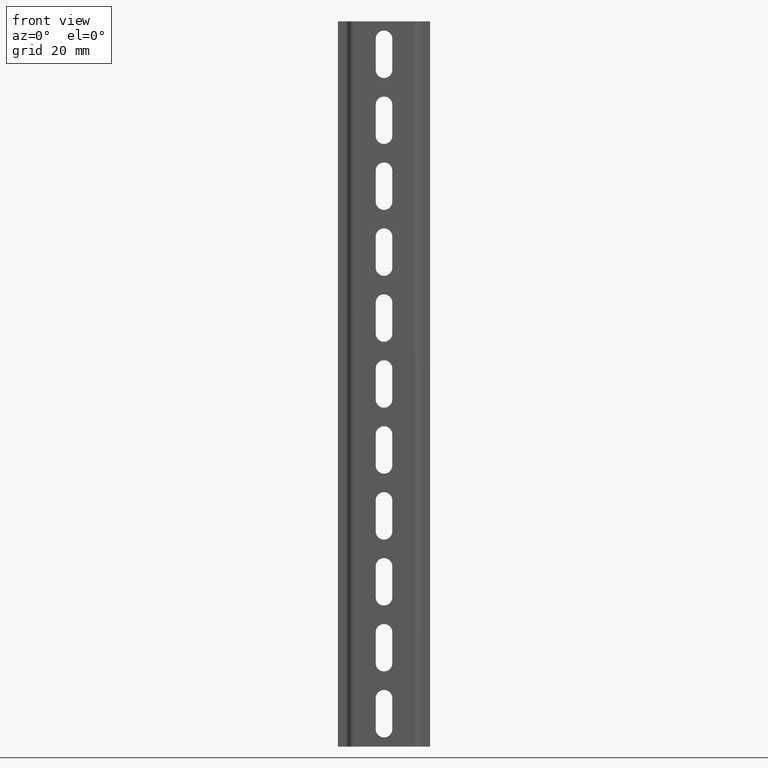
[diagram: clean part render]
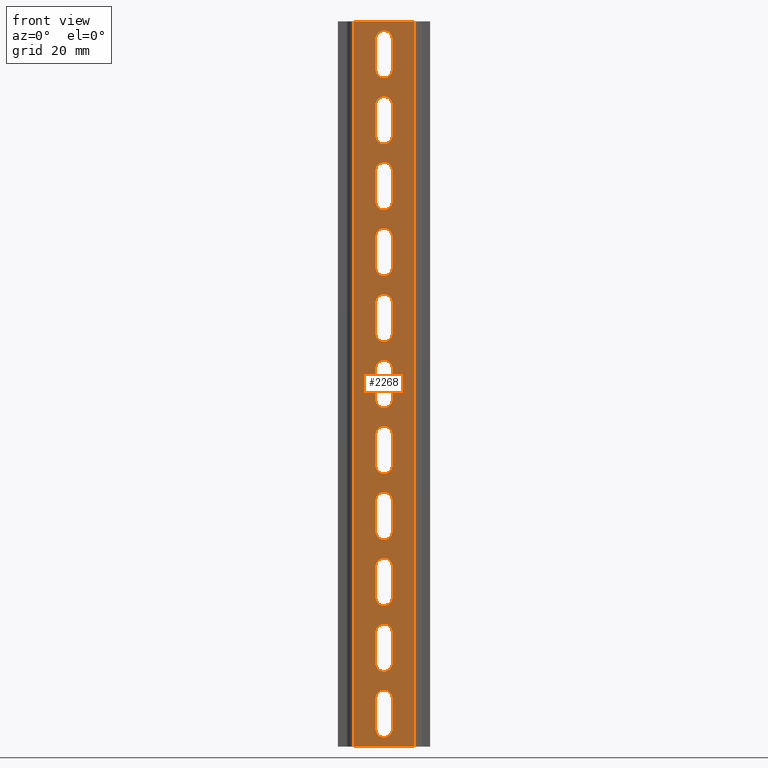
[diagram: same view with one face highlighted and labeled with its STEP entity id]
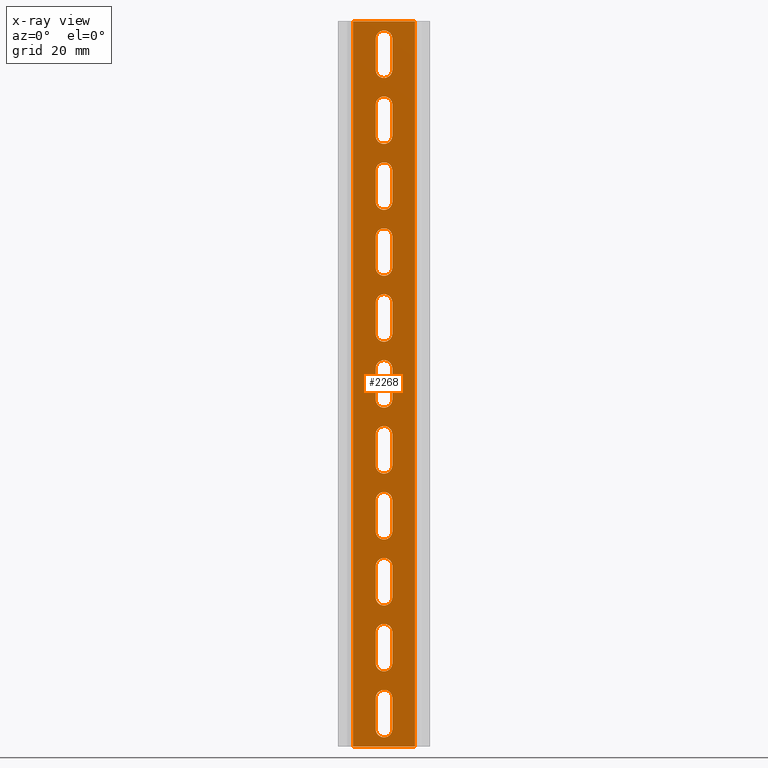
[diagram: x-ray of the same camera — body ghosted, the highlighted face saturated]
A machine part, front view. The second image highlights one B-rep face of the part: STEP entity #2268.
The next image is the same camera in x-ray: the body ghosted, the highlighted face saturated — about 0% of this face is hidden behind the body in this view.
In plain terms, the highlighted planar face has unit normal (0, 1, -0).
Its self-contained STEP definition (entity closure, byte-faithful):
#2 = VERTEX_POINT ( 'NONE', #718 ) ;
#4 = DIRECTION ( 'NONE',  ( -1.000000000000000000, 0.000000000000000000, 0.000000000000000000 ) ) ;
#10 = CARTESIAN_POINT ( 'NONE',  ( 13.50000000000000000, 4.152234112097999633E-14, 93.35000000000000853 ) ) ;
#15 = ORIENTED_EDGE ( 'NONE', *, *, #89, .T. ) ;
#17 = EDGE_CURVE ( 'NONE', #1024, #994, #593, .T. ) ;
#19 = CARTESIAN_POINT ( 'NONE',  ( 10.34999999999999964, 8.593126210599000662E-14, 193.3499999999999943 ) ) ;
#23 = VERTEX_POINT ( 'NONE', #1632 ) ;
#29 = CARTESIAN_POINT ( 'NONE',  ( 10.34999999999999964, 4.030109579389000173E-14, 90.82500000000000284 ) ) ;
#31 = VERTEX_POINT ( 'NONE', #739 ) ;
#35 = VECTOR ( 'NONE', #1892, 1000.000000000000000 ) ;
#37 = CIRCLE ( 'NONE', #1836, 3.149999999999999911 ) ;
#40 = DIRECTION ( 'NONE',  ( -1.000000000000000000, 0.000000000000000000, 0.000000000000000000 ) ) ;
#41 = CARTESIAN_POINT ( 'NONE',  ( 10.34999999999999964, 2.886579864024999558E-15, 6.649999999999999467 ) ) ;
#45 = CIRCLE ( 'NONE', #946, 3.149999999999999911 ) ;
#47 = VECTOR ( 'NONE', #1805, 1000.000000000000000 ) ;
#51 = VERTEX_POINT ( 'NONE', #530 ) ;
#55 = CARTESIAN_POINT ( 'NONE',  ( 13.50000000000000000, 8.593126210599000662E-14, 193.3499999999999943 ) ) ;
#56 = DIRECTION ( 'NONE',  ( 0.000000000000000000, 4.440892098500999885E-16, 1.000000000000000000 ) ) ;
#57 = CARTESIAN_POINT ( 'NONE',  ( 13.50000000000000000, 1.192379528446999839E-13, 268.3499999999999659 ) ) ;
#58 = ORIENTED_EDGE ( 'NONE', *, *, #719, .T. ) ;
#63 = DIRECTION ( 'NONE',  ( -1.000000000000000000, 0.000000000000000000, 0.000000000000000000 ) ) ;
#65 = VECTOR ( 'NONE', #586, 1000.000000000000000 ) ;
#69 = VECTOR ( 'NONE', #1733, 1000.000000000000000 ) ;
#72 = CARTESIAN_POINT ( 'NONE',  ( 13.50000000000000000, 4.729550084902998993E-14, 106.6499999999999915 ) ) ;
#73 = VECTOR ( 'NONE', #1466, 1000.000000000000000 ) ;
#75 = VERTEX_POINT ( 'NONE', #1111 ) ;
#76 = CARTESIAN_POINT ( 'NONE',  ( 13.50000000000000000, 5.839773109527999023E-14, 131.6499999999999773 ) ) ;
#82 = ORIENTED_EDGE ( 'NONE', *, *, #2100, .T. ) ;
#86 = LINE ( 'NONE', #2047, #908 ) ;
#89 = EDGE_CURVE ( 'NONE', #217, #210, #1624, .T. ) ;
#97 = EDGE_CURVE ( 'NONE', #1528, #75, #955, .T. ) ;
#103 = ORIENTED_EDGE ( 'NONE', *, *, #869, .T. ) ;
#104 = VECTOR ( 'NONE', #2150, 1000.000000000000000 ) ;
#105 = FACE_BOUND ( 'NONE', #1168, .T. ) ;
#132 = CARTESIAN_POINT ( 'NONE',  ( 16.65000000000000213, 2.631228568361999654E-14, 59.17499999999999716 ) ) ;
#144 = LINE ( 'NONE', #1239, #1434 ) ;
#147 = CIRCLE ( 'NONE', #1765, 3.149999999999999911 ) ;
#148 = DIRECTION ( 'NONE',  ( -1.000000000000000000, 0.000000000000000000, 0.000000000000000000 ) ) ;
#149 = ORIENTED_EDGE ( 'NONE', *, *, #1981, .F. ) ;
#157 = CIRCLE ( 'NONE', #1169, 3.149999999999999911 ) ;
#158 = VECTOR ( 'NONE', #1716, 1000.000000000000000 ) ;
#160 = CARTESIAN_POINT ( 'NONE',  ( 13.50000000000000000, 9.703349235223999430E-14, 218.3499999999999943 ) ) ;
#162 = CARTESIAN_POINT ( 'NONE',  ( 13.50000000000000000, 1.139088823264999898E-13, 256.6499999999999773 ) ) ;
#167 = VERTEX_POINT ( 'NONE', #1149 ) ;
#168 = CARTESIAN_POINT ( 'NONE',  ( 10.34999999999999964, 8.060219158778999991E-14, 181.6500000000000057 ) ) ;
#170 = EDGE_CURVE ( 'NONE', #213, #722, #1506, .T. ) ;
#172 = VERTEX_POINT ( 'NONE', #598 ) ;
#175 = EDGE_CURVE ( 'NONE', #836, #1528, #708, .T. ) ;
#183 = VECTOR ( 'NONE', #56, 1000.000000000000000 ) ;
#193 = ORIENTED_EDGE ( 'NONE', *, *, #1039, .T. ) ;
#200 = VECTOR ( 'NONE', #1826, 1000.000000000000000 ) ;
#210 = VERTEX_POINT ( 'NONE', #978 ) ;
#212 = CARTESIAN_POINT ( 'NONE',  ( 16.65000000000000213, 2.886579864024999558E-15, 6.649999999999999467 ) ) ;
#213 = VERTEX_POINT ( 'NONE', #1338 ) ;
#217 = VERTEX_POINT ( 'NONE', #1196 ) ;
#223 = VECTOR ( 'NONE', #1049, 1000.000000000000000 ) ;
#235 = EDGE_LOOP ( 'NONE', ( #455, #1374, #2052, #515 ) ) ;
#236 = CARTESIAN_POINT ( 'NONE',  ( 16.65000000000000213, 3.741451592986999684E-14, 84.17499999999999716 ) ) ;
#237 = ORIENTED_EDGE ( 'NONE', *, *, #1869, .T. ) ;
#241 = DIRECTION ( 'NONE',  ( 0.000000000000000000, 1.000000000000000000, -4.440892098500999885E-16 ) ) ;
#247 = DIRECTION ( 'NONE',  ( 0.000000000000000000, 1.000000000000000000, -4.440892098500999885E-16 ) ) ;
#260 = ORIENTED_EDGE ( 'NONE', *, *, #170, .T. ) ;
#263 = CARTESIAN_POINT ( 'NONE',  ( 10.34999999999999964, 1.443289932013000114E-15, 3.324999999999999734 ) ) ;
#277 = FACE_BOUND ( 'NONE', #235, .T. ) ;
#281 = CARTESIAN_POINT ( 'NONE',  ( 13.50000000000000000, 8.215650382226000627E-15, 18.35000000000000142 ) ) ;
#289 = CARTESIAN_POINT ( 'NONE',  ( 0.000000000000000000, 0.000000000000000000, 0.000000000000000000 ) ) ;
#290 = ORIENTED_EDGE ( 'NONE', *, *, #2125, .T. ) ;
#296 = CARTESIAN_POINT ( 'NONE',  ( 10.34999999999999964, 4.729550084902998993E-14, 106.6499999999999915 ) ) ;
#300 = ORIENTED_EDGE ( 'NONE', *, *, #1917, .T. ) ;
#314 = EDGE_CURVE ( 'NONE', #2038, #1011, #892, .T. ) ;
#323 = CARTESIAN_POINT ( 'NONE',  ( 10.34999999999999964, 6.994405055138001055E-15, 15.82499999999999929 ) ) ;
#324 = CARTESIAN_POINT ( 'NONE',  ( 16.65000000000000213, 1.398881011027999848E-14, 31.64999999999999858 ) ) ;
#325 = AXIS2_PLACEMENT_3D ( 'NONE', #1537, #1550, #847 ) ;
#329 = CARTESIAN_POINT ( 'NONE',  ( 13.50000000000000000, 9.170442183404000021E-14, 206.6500000000000057 ) ) ;
#331 = LINE ( 'NONE', #702, #69 ) ;
#334 = DIRECTION ( 'NONE',  ( -1.000000000000000000, 0.000000000000000000, 0.000000000000000000 ) ) ;
#336 = EDGE_CURVE ( 'NONE', #399, #698, #1399, .T. ) ;
#341 = ORIENTED_EDGE ( 'NONE', *, *, #1120, .T. ) ;
#352 = CARTESIAN_POINT ( 'NONE',  ( 16.65000000000000213, 2.509104035652999878E-14, 56.64999999999999858 ) ) ;
#353 = CARTESIAN_POINT ( 'NONE',  ( 16.65000000000000213, 9.703349235223999430E-14, 218.3499999999999943 ) ) ;
#368 = CARTESIAN_POINT ( 'NONE',  ( 16.65000000000000213, 3.042011087473000234E-14, 68.34999999999999432 ) ) ;
#376 = DIRECTION ( 'NONE',  ( -1.000000000000000000, 0.000000000000000000, 0.000000000000000000 ) ) ;
#377 = DIRECTION ( 'NONE',  ( -1.000000000000000000, 0.000000000000000000, 0.000000000000000000 ) ) ;
#380 = CARTESIAN_POINT ( 'NONE',  ( 10.34999999999999964, 5.262457136722999664E-14, 118.3499999999999943 ) ) ;
#382 = EDGE_CURVE ( 'NONE', #1555, #2087, #871, .T. ) ;
#389 = ORIENTED_EDGE ( 'NONE', *, *, #2142, .T. ) ;
#391 = CARTESIAN_POINT ( 'NONE',  ( 10.34999999999999964, 3.619327060278000224E-14, 81.65000000000000568 ) ) ;
#394 = DIRECTION ( 'NONE',  ( 0.000000000000000000, -4.440892098500999885E-16, -1.000000000000000000 ) ) ;
#397 = CARTESIAN_POINT ( 'NONE',  ( 16.65000000000000213, 1.081357225984999784E-13, 243.3500000000000227 ) ) ;
#398 = LINE ( 'NONE', #1431, #406 ) ;
#399 = VERTEX_POINT ( 'NONE', #824 ) ;
#406 = VECTOR ( 'NONE', #2164, 1000.000000000000000 ) ;
#409 = DIRECTION ( 'NONE',  ( 1.000000000000000000, 0.000000000000000000, 0.000000000000000000 ) ) ;
#420 = CARTESIAN_POINT ( 'NONE',  ( 0.000000000000000000, 0.000000000000000000, 0.000000000000000000 ) ) ;
#440 = AXIS2_PLACEMENT_3D ( 'NONE', #503, #2102, #334 ) ;
#444 = DIRECTION ( 'NONE',  ( -1.000000000000000000, 0.000000000000000000, 0.000000000000000000 ) ) ;
#447 = DIRECTION ( 'NONE',  ( 0.000000000000000000, 1.000000000000000000, -4.440892098500999885E-16 ) ) ;
#455 = ORIENTED_EDGE ( 'NONE', *, *, #1055, .T. ) ;
#456 = FACE_BOUND ( 'NONE', #808, .T. ) ;
#458 = CARTESIAN_POINT ( 'NONE',  ( 16.65000000000000213, 5.406786129924998921E-14, 121.6750000000000114 ) ) ;
#463 = CARTESIAN_POINT ( 'NONE',  ( 10.34999999999999964, 3.474998067076999349E-14, 78.32500000000000284 ) ) ;
#464 = ORIENTED_EDGE ( 'NONE', *, *, #738, .T. ) ;
#466 = VERTEX_POINT ( 'NONE', #1868 ) ;
#467 = EDGE_CURVE ( 'NONE', #1441, #1008, #2292, .T. ) ;
#495 = CIRCLE ( 'NONE', #1852, 3.149999999999999911 ) ;
#496 = DIRECTION ( 'NONE',  ( 0.000000000000000000, -4.440892098500999885E-16, -1.000000000000000000 ) ) ;
#502 = ORIENTED_EDGE ( 'NONE', *, *, #97, .T. ) ;
#503 = CARTESIAN_POINT ( 'NONE',  ( 13.50000000000000000, 3.619327060278000224E-14, 81.65000000000000568 ) ) ;
#506 = DIRECTION ( 'NONE',  ( 0.000000000000000000, 4.440892098500999885E-16, 1.000000000000000000 ) ) ;
#514 = DIRECTION ( 'NONE',  ( 1.000000000000000000, 0.000000000000000000, 0.000000000000000000 ) ) ;
#515 = ORIENTED_EDGE ( 'NONE', *, *, #2063, .T. ) ;
#516 = EDGE_CURVE ( 'NONE', #75, #31, #1717, .T. ) ;
#524 = CARTESIAN_POINT ( 'NONE',  ( 16.65000000000000213, 3.186340080673999847E-14, 71.67499999999999716 ) ) ;
#530 = CARTESIAN_POINT ( 'NONE',  ( 10.34999999999999964, 9.703349235223999430E-14, 218.3499999999999943 ) ) ;
#537 = LINE ( 'NONE', #2167, #985 ) ;
#538 = DIRECTION ( 'NONE',  ( 0.000000000000000000, 1.000000000000000000, -4.440892098500999885E-16 ) ) ;
#540 = ORIENTED_EDGE ( 'NONE', *, *, #516, .T. ) ;
#555 = CARTESIAN_POINT ( 'NONE',  ( 16.65000000000000213, 8.060219158778999991E-14, 181.6500000000000057 ) ) ;
#557 = CARTESIAN_POINT ( 'NONE',  ( 1.800000000000000044, 1.219024881037999809E-13, 275.0000000000000000 ) ) ;
#560 = VERTEX_POINT ( 'NONE', #296 ) ;
#568 = CIRCLE ( 'NONE', #720, 3.149999999999999911 ) ;
#569 = CARTESIAN_POINT ( 'NONE',  ( 16.65000000000000213, 4.296563105298999877E-14, 96.67499999999999716 ) ) ;
#571 = AXIS2_PLACEMENT_3D ( 'NONE', #289, #1363, #496 ) ;
#579 = DIRECTION ( 'NONE',  ( -1.000000000000000000, 0.000000000000000000, 0.000000000000000000 ) ) ;
#582 = LINE ( 'NONE', #1844, #2243 ) ;
#584 = ORIENTED_EDGE ( 'NONE', *, *, #382, .T. ) ;
#586 = DIRECTION ( 'NONE',  ( 0.000000000000000000, -4.440892098500999885E-16, -1.000000000000000000 ) ) ;
#588 = EDGE_CURVE ( 'NONE', #167, #729, #1801, .T. ) ;
#593 = CIRCLE ( 'NONE', #631, 3.149999999999999911 ) ;
#598 = CARTESIAN_POINT ( 'NONE',  ( 16.65000000000000213, 6.372680161347999694E-14, 143.3499999999999943 ) ) ;
#606 = EDGE_CURVE ( 'NONE', #1176, #1672, #1940, .T. ) ;
#607 = CARTESIAN_POINT ( 'NONE',  ( 25.19999999999999929, 1.219024881037999809E-13, 275.0000000000000000 ) ) ;
#614 = CARTESIAN_POINT ( 'NONE',  ( 13.50000000000000000, 1.081357225984999784E-13, 243.3500000000000227 ) ) ;
#627 = ORIENTED_EDGE ( 'NONE', *, *, #1308, .T. ) ;
#631 = AXIS2_PLACEMENT_3D ( 'NONE', #1988, #1822, #1439 ) ;
#643 = LINE ( 'NONE', #263, #35 ) ;
#644 = EDGE_LOOP ( 'NONE', ( #237, #1865, #1710, #923 ) ) ;
#645 = CIRCLE ( 'NONE', #1586, 3.149999999999999911 ) ;
#648 = EDGE_CURVE ( 'NONE', #994, #649, #889, .T. ) ;
#649 = VERTEX_POINT ( 'NONE', #1778 ) ;
#652 = DIRECTION ( 'NONE',  ( 0.000000000000000000, 4.440892098500999885E-16, 1.000000000000000000 ) ) ;
#655 = VERTEX_POINT ( 'NONE', #1609 ) ;
#680 = DIRECTION ( 'NONE',  ( 0.000000000000000000, -4.440892098500999885E-16, -1.000000000000000000 ) ) ;
#687 = VERTEX_POINT ( 'NONE', #368 ) ;
#698 = VERTEX_POINT ( 'NONE', #1118 ) ;
#699 = EDGE_CURVE ( 'NONE', #1734, #466, #1500, .T. ) ;
#702 = CARTESIAN_POINT ( 'NONE',  ( 10.34999999999999964, 5.695444116326998779E-14, 128.3249999999999886 ) ) ;
#706 = ORIENTED_EDGE ( 'NONE', *, *, #920, .T. ) ;
#708 = CIRCLE ( 'NONE', #1381, 3.149999999999999911 ) ;
#711 = DIRECTION ( 'NONE',  ( 0.000000000000000000, 1.000000000000000000, -4.440892098500999885E-16 ) ) ;
#718 = CARTESIAN_POINT ( 'NONE',  ( 10.34999999999999964, 9.170442183404000021E-14, 206.6500000000000057 ) ) ;
#719 = EDGE_CURVE ( 'NONE', #560, #787, #1265, .T. ) ;
#720 = AXIS2_PLACEMENT_3D ( 'NONE', #1342, #447, #2209 ) ;
#722 = VERTEX_POINT ( 'NONE', #212 ) ;
#726 = CARTESIAN_POINT ( 'NONE',  ( 10.34999999999999964, 2.364775042451999634E-14, 53.32499999999999574 ) ) ;
#729 = VERTEX_POINT ( 'NONE', #391 ) ;
#734 = LINE ( 'NONE', #29, #73 ) ;
#738 = EDGE_CURVE ( 'NONE', #2, #51, #762, .T. ) ;
#739 = CARTESIAN_POINT ( 'NONE',  ( 10.34999999999999964, 1.139088823264999898E-13, 256.6499999999999773 ) ) ;
#757 = CARTESIAN_POINT ( 'NONE',  ( 13.50000000000000000, 1.398881011027999848E-14, 31.64999999999999858 ) ) ;
#762 = LINE ( 'NONE', #2179, #104 ) ;
#770 = CARTESIAN_POINT ( 'NONE',  ( 13.50000000000000000, 2.886579864024999558E-15, 6.649999999999999467 ) ) ;
#772 = VERTEX_POINT ( 'NONE', #1631 ) ;
#777 = CARTESIAN_POINT ( 'NONE',  ( 16.65000000000000213, 4.729550084902998993E-14, 106.6499999999999915 ) ) ;
#781 = CARTESIAN_POINT ( 'NONE',  ( 16.65000000000000213, 8.593126210599000662E-14, 193.3499999999999943 ) ) ;
#787 = VERTEX_POINT ( 'NONE', #380 ) ;
#795 = AXIS2_PLACEMENT_3D ( 'NONE', #160, #2302, #1557 ) ;
#808 = EDGE_LOOP ( 'NONE', ( #300, #1755, #58, #1656 ) ) ;
#812 = DIRECTION ( 'NONE',  ( -1.000000000000000000, 0.000000000000000000, 0.000000000000000000 ) ) ;
#814 = ORIENTED_EDGE ( 'NONE', *, *, #606, .F. ) ;
#822 = FACE_BOUND ( 'NONE', #839, .T. ) ;
#824 = CARTESIAN_POINT ( 'NONE',  ( 10.34999999999999964, 6.949996134152999053E-14, 156.6500000000000057 ) ) ;
#829 = VECTOR ( 'NONE', #2039, 1000.000000000000000 ) ;
#836 = VERTEX_POINT ( 'NONE', #2041 ) ;
#837 = FACE_BOUND ( 'NONE', #1921, .T. ) ;
#839 = EDGE_LOOP ( 'NONE', ( #1122, #1031, #464, #1341 ) ) ;
#847 = DIRECTION ( 'NONE',  ( -1.000000000000000000, 0.000000000000000000, 0.000000000000000000 ) ) ;
#869 = EDGE_CURVE ( 'NONE', #1183, #1711, #643, .T. ) ;
#870 = AXIS2_PLACEMENT_3D ( 'NONE', #76, #1356, #2074 ) ;
#871 = LINE ( 'NONE', #323, #2054 ) ;
#873 = CIRCLE ( 'NONE', #1210, 3.149999999999999911 ) ;
#889 = LINE ( 'NONE', #2126, #223 ) ;
#892 = CIRCLE ( 'NONE', #325, 3.149999999999999911 ) ;
#897 = DIRECTION ( 'NONE',  ( 0.000000000000000000, 1.000000000000000000, -4.440892098500999885E-16 ) ) ;
#908 = VECTOR ( 'NONE', #1520, 1000.000000000000000 ) ;
#914 = DIRECTION ( 'NONE',  ( 0.000000000000000000, 4.440892098500999885E-16, 1.000000000000000000 ) ) ;
#920 = EDGE_CURVE ( 'NONE', #1711, #213, #37, .T. ) ;
#923 = ORIENTED_EDGE ( 'NONE', *, *, #699, .T. ) ;
#929 = VECTOR ( 'NONE', #394, 1000.000000000000000 ) ;
#938 = VERTEX_POINT ( 'NONE', #1699 ) ;
#946 = AXIS2_PLACEMENT_3D ( 'NONE', #329, #1544, #2250 ) ;
#955 = LINE ( 'NONE', #2011, #65 ) ;
#965 = ORIENTED_EDGE ( 'NONE', *, *, #175, .T. ) ;
#966 = EDGE_LOOP ( 'NONE', ( #502, #540, #193, #965 ) ) ;
#976 = CIRCLE ( 'NONE', #1839, 3.149999999999999911 ) ;
#978 = CARTESIAN_POINT ( 'NONE',  ( 16.65000000000000213, 6.949996134152999053E-14, 156.6500000000000057 ) ) ;
#985 = VECTOR ( 'NONE', #914, 1000.000000000000000 ) ;
#994 = VERTEX_POINT ( 'NONE', #2304 ) ;
#1004 = CARTESIAN_POINT ( 'NONE',  ( 1.800000000000000044, -2.220446049249999755E-16, 9.860761315263000082E-32 ) ) ;
#1005 = DIRECTION ( 'NONE',  ( 0.000000000000000000, 1.000000000000000000, -4.440892098500999885E-16 ) ) ;
#1008 = VERTEX_POINT ( 'NONE', #1367 ) ;
#1011 = VERTEX_POINT ( 'NONE', #2086 ) ;
#1017 = DIRECTION ( 'NONE',  ( 0.000000000000000000, -4.440892098500999885E-16, -1.000000000000000000 ) ) ;
#1019 = CARTESIAN_POINT ( 'NONE',  ( 25.19999999999999929, -2.220446049249999755E-16, 9.860761315263000082E-32 ) ) ;
#1024 = VERTEX_POINT ( 'NONE', #1759 ) ;
#1031 = ORIENTED_EDGE ( 'NONE', *, *, #1842, .T. ) ;
#1035 = EDGE_CURVE ( 'NONE', #1513, #1672, #1191, .T. ) ;
#1039 = EDGE_CURVE ( 'NONE', #31, #836, #331, .T. ) ;
#1049 = DIRECTION ( 'NONE',  ( 0.000000000000000000, 4.440892098500999885E-16, 1.000000000000000000 ) ) ;
#1052 = DIRECTION ( 'NONE',  ( 0.000000000000000000, 4.440892098500999885E-16, 1.000000000000000000 ) ) ;
#1055 = EDGE_CURVE ( 'NONE', #172, #1837, #1569, .T. ) ;
#1058 = FACE_BOUND ( 'NONE', #644, .T. ) ;
#1068 = CIRCLE ( 'NONE', #1321, 3.149999999999999911 ) ;
#1091 = VECTOR ( 'NONE', #1218, 1000.000000000000000 ) ;
#1105 = LINE ( 'NONE', #1274, #47 ) ;
#1111 = CARTESIAN_POINT ( 'NONE',  ( 16.65000000000000213, 1.139088823264999898E-13, 256.6499999999999773 ) ) ;
#1113 = CARTESIAN_POINT ( 'NONE',  ( 13.50000000000000000, 5.262457136722999664E-14, 118.3499999999999943 ) ) ;
#1118 = CARTESIAN_POINT ( 'NONE',  ( 10.34999999999999964, 7.482903185973999369E-14, 168.3499999999999943 ) ) ;
#1120 = EDGE_CURVE ( 'NONE', #1011, #655, #398, .T. ) ;
#1122 = ORIENTED_EDGE ( 'NONE', *, *, #2254, .T. ) ;
#1131 = ORIENTED_EDGE ( 'NONE', *, *, #2109, .T. ) ;
#1137 = AXIS2_PLACEMENT_3D ( 'NONE', #1475, #897, #4 ) ;
#1146 = ORIENTED_EDGE ( 'NONE', *, *, #336, .T. ) ;
#1149 = CARTESIAN_POINT ( 'NONE',  ( 16.65000000000000213, 3.619327060278000224E-14, 81.65000000000000568 ) ) ;
#1159 = EDGE_CURVE ( 'NONE', #2066, #2090, #976, .T. ) ;
#1168 = EDGE_LOOP ( 'NONE', ( #1215, #290, #584, #1635 ) ) ;
#1169 = AXIS2_PLACEMENT_3D ( 'NONE', #55, #1674, #63 ) ;
#1170 = CARTESIAN_POINT ( 'NONE',  ( 10.34999999999999964, 8.215650382226000627E-15, 18.35000000000000142 ) ) ;
#1171 = CIRCLE ( 'NONE', #2181, 3.149999999999999911 ) ;
#1174 = EDGE_LOOP ( 'NONE', ( #2103, #814, #149, #1647 ) ) ;
#1176 = VERTEX_POINT ( 'NONE', #557 ) ;
#1177 = CARTESIAN_POINT ( 'NONE',  ( 10.34999999999999964, 4.152234112097999633E-14, 93.35000000000000853 ) ) ;
#1179 = VERTEX_POINT ( 'NONE', #353 ) ;
#1183 = VERTEX_POINT ( 'NONE', #41 ) ;
#1189 = CARTESIAN_POINT ( 'NONE',  ( 10.34999999999999964, 2.919886554763999512E-14, 65.82499999999998863 ) ) ;
#1191 = LINE ( 'NONE', #1019, #1091 ) ;
#1196 = CARTESIAN_POINT ( 'NONE',  ( 16.65000000000000213, 7.482903185973999369E-14, 168.3499999999999943 ) ) ;
#1204 = CARTESIAN_POINT ( 'NONE',  ( 16.65000000000000213, 5.839773109527999023E-14, 131.6499999999999773 ) ) ;
#1208 = DIRECTION ( 'NONE',  ( 0.000000000000000000, 1.000000000000000000, -4.440892098500999885E-16 ) ) ;
#1210 = AXIS2_PLACEMENT_3D ( 'NONE', #2173, #1627, #376 ) ;
#1214 = FACE_BOUND ( 'NONE', #966, .T. ) ;
#1215 = ORIENTED_EDGE ( 'NONE', *, *, #1534, .T. ) ;
#1218 = DIRECTION ( 'NONE',  ( 0.000000000000000000, 4.440892098500999885E-16, 1.000000000000000000 ) ) ;
#1231 = VECTOR ( 'NONE', #506, 1000.000000000000000 ) ;
#1239 = CARTESIAN_POINT ( 'NONE',  ( 16.65000000000000213, 2.076117056048999817E-14, 46.67500000000000426 ) ) ;
#1240 = DIRECTION ( 'NONE',  ( 0.000000000000000000, -4.440892098500999885E-16, -1.000000000000000000 ) ) ;
#1242 = CARTESIAN_POINT ( 'NONE',  ( 0.000000000000000000, 1.221245327087999603E-13, 275.0000000000000000 ) ) ;
#1250 = VERTEX_POINT ( 'NONE', #19 ) ;
#1255 = EDGE_CURVE ( 'NONE', #2090, #1250, #734, .T. ) ;
#1265 = LINE ( 'NONE', #726, #183 ) ;
#1274 = CARTESIAN_POINT ( 'NONE',  ( 16.65000000000000213, 1.521005543736000295E-14, 34.17499999999999716 ) ) ;
#1298 = ORIENTED_EDGE ( 'NONE', *, *, #314, .T. ) ;
#1302 = CARTESIAN_POINT ( 'NONE',  ( 10.34999999999999964, 1.398881011027999848E-14, 31.64999999999999858 ) ) ;
#1308 = EDGE_CURVE ( 'NONE', #210, #399, #147, .T. ) ;
#1314 = DIRECTION ( 'NONE',  ( -1.000000000000000000, 0.000000000000000000, 0.000000000000000000 ) ) ;
#1318 = LINE ( 'NONE', #420, #1777 ) ;
#1321 = AXIS2_PLACEMENT_3D ( 'NONE', #1113, #1648, #40 ) ;
#1325 = VERTEX_POINT ( 'NONE', #2207 ) ;
#1331 = CARTESIAN_POINT ( 'NONE',  ( 13.50000000000000000, 6.949996134152999053E-14, 156.6500000000000057 ) ) ;
#1338 = CARTESIAN_POINT ( 'NONE',  ( 16.65000000000000213, 8.215650382226000627E-15, 18.35000000000000142 ) ) ;
#1341 = ORIENTED_EDGE ( 'NONE', *, *, #1860, .T. ) ;
#1342 = CARTESIAN_POINT ( 'NONE',  ( 13.50000000000000000, 3.042011087473000234E-14, 68.34999999999999432 ) ) ;
#1356 = DIRECTION ( 'NONE',  ( 0.000000000000000000, 1.000000000000000000, -4.440892098500999885E-16 ) ) ;
#1363 = DIRECTION ( 'NONE',  ( 0.000000000000000000, 1.000000000000000000, -4.440892098500999885E-16 ) ) ;
#1367 = CARTESIAN_POINT ( 'NONE',  ( 10.34999999999999964, 6.372680161347999694E-14, 143.3499999999999943 ) ) ;
#1374 = ORIENTED_EDGE ( 'NONE', *, *, #1769, .T. ) ;
#1381 = AXIS2_PLACEMENT_3D ( 'NONE', #57, #2212, #1642 ) ;
#1399 = LINE ( 'NONE', #463, #1231 ) ;
#1427 = VECTOR ( 'NONE', #652, 1000.000000000000000 ) ;
#1431 = CARTESIAN_POINT ( 'NONE',  ( 10.34999999999999964, 1.254552017825999959E-14, 28.32499999999999929 ) ) ;
#1434 = VECTOR ( 'NONE', #680, 1000.000000000000000 ) ;
#1436 = AXIS2_PLACEMENT_3D ( 'NONE', #1464, #1979, #2163 ) ;
#1439 = DIRECTION ( 'NONE',  ( -1.000000000000000000, 0.000000000000000000, 0.000000000000000000 ) ) ;
#1441 = VERTEX_POINT ( 'NONE', #1975 ) ;
#1462 = AXIS2_PLACEMENT_3D ( 'NONE', #162, #1208, #148 ) ;
#1464 = CARTESIAN_POINT ( 'NONE',  ( 13.50000000000000000, 6.372680161347999694E-14, 143.3499999999999943 ) ) ;
#1466 = DIRECTION ( 'NONE',  ( 0.000000000000000000, 4.440892098500999885E-16, 1.000000000000000000 ) ) ;
#1475 = CARTESIAN_POINT ( 'NONE',  ( 13.50000000000000000, 1.931788062847999572E-14, 43.35000000000000142 ) ) ;
#1484 = VERTEX_POINT ( 'NONE', #324 ) ;
#1489 = ORIENTED_EDGE ( 'NONE', *, *, #648, .T. ) ;
#1493 = CARTESIAN_POINT ( 'NONE',  ( 16.65000000000000213, 4.107825191113000313E-15, 9.175000000000000711 ) ) ;
#1499 = DIRECTION ( 'NONE',  ( -1.000000000000000000, 0.000000000000000000, 0.000000000000000000 ) ) ;
#1500 = CIRCLE ( 'NONE', #2057, 3.149999999999999911 ) ;
#1506 = LINE ( 'NONE', #1493, #929 ) ;
#1513 = VERTEX_POINT ( 'NONE', #1982 ) ;
#1520 = DIRECTION ( 'NONE',  ( 0.000000000000000000, -4.440892098500999885E-16, -1.000000000000000000 ) ) ;
#1528 = VERTEX_POINT ( 'NONE', #2148 ) ;
#1534 = EDGE_CURVE ( 'NONE', #938, #1484, #582, .T. ) ;
#1537 = CARTESIAN_POINT ( 'NONE',  ( 13.50000000000000000, 2.509104035652999878E-14, 56.64999999999999858 ) ) ;
#1540 = FACE_OUTER_BOUND ( 'NONE', #1174, .T. ) ;
#1544 = DIRECTION ( 'NONE',  ( 0.000000000000000000, 1.000000000000000000, -4.440892098500999885E-16 ) ) ;
#1545 = CIRCLE ( 'NONE', #1137, 3.149999999999999911 ) ;
#1547 = ORIENTED_EDGE ( 'NONE', *, *, #1255, .T. ) ;
#1550 = DIRECTION ( 'NONE',  ( 0.000000000000000000, 1.000000000000000000, -4.440892098500999885E-16 ) ) ;
#1551 = EDGE_CURVE ( 'NONE', #729, #1734, #537, .T. ) ;
#1555 = VERTEX_POINT ( 'NONE', #1302 ) ;
#1557 = DIRECTION ( 'NONE',  ( -1.000000000000000000, 0.000000000000000000, 0.000000000000000000 ) ) ;
#1569 = LINE ( 'NONE', #524, #1987 ) ;
#1583 = LINE ( 'NONE', #132, #1922 ) ;
#1586 = AXIS2_PLACEMENT_3D ( 'NONE', #770, #241, #812 ) ;
#1609 = CARTESIAN_POINT ( 'NONE',  ( 10.34999999999999964, 3.042011087473000234E-14, 68.34999999999999432 ) ) ;
#1618 = CARTESIAN_POINT ( 'NONE',  ( 13.50000000000000000, 8.060219158778999991E-14, 181.6500000000000057 ) ) ;
#1624 = LINE ( 'NONE', #236, #1681 ) ;
#1627 = DIRECTION ( 'NONE',  ( 0.000000000000000000, 1.000000000000000000, -4.440892098500999885E-16 ) ) ;
#1631 = CARTESIAN_POINT ( 'NONE',  ( 16.65000000000000213, 5.262457136722999664E-14, 118.3499999999999943 ) ) ;
#1632 = CARTESIAN_POINT ( 'NONE',  ( 1.800000000000000044, -2.220446049249999755E-16, 9.860761315263000082E-32 ) ) ;
#1635 = ORIENTED_EDGE ( 'NONE', *, *, #2000, .T. ) ;
#1642 = DIRECTION ( 'NONE',  ( -1.000000000000000000, 0.000000000000000000, 0.000000000000000000 ) ) ;
#1647 = ORIENTED_EDGE ( 'NONE', *, *, #2226, .T. ) ;
#1648 = DIRECTION ( 'NONE',  ( 0.000000000000000000, 1.000000000000000000, -4.440892098500999885E-16 ) ) ;
#1650 = DIRECTION ( 'NONE',  ( 0.000000000000000000, 1.000000000000000000, -4.440892098500999885E-16 ) ) ;
#1653 = DIRECTION ( 'NONE',  ( 0.000000000000000000, -4.440892098500999885E-16, -1.000000000000000000 ) ) ;
#1656 = ORIENTED_EDGE ( 'NONE', *, *, #2120, .T. ) ;
#1669 = EDGE_LOOP ( 'NONE', ( #1941, #2184, #1489, #389 ) ) ;
#1672 = VERTEX_POINT ( 'NONE', #607 ) ;
#1674 = DIRECTION ( 'NONE',  ( 0.000000000000000000, 1.000000000000000000, -4.440892098500999885E-16 ) ) ;
#1679 = ORIENTED_EDGE ( 'NONE', *, *, #1784, .T. ) ;
#1680 = EDGE_CURVE ( 'NONE', #722, #1183, #645, .T. ) ;
#1681 = VECTOR ( 'NONE', #2033, 1000.000000000000000 ) ;
#1684 = DIRECTION ( 'NONE',  ( 0.000000000000000000, 1.000000000000000000, -4.440892098500999885E-16 ) ) ;
#1693 = VERTEX_POINT ( 'NONE', #781 ) ;
#1695 = FACE_BOUND ( 'NONE', #2204, .T. ) ;
#1699 = CARTESIAN_POINT ( 'NONE',  ( 16.65000000000000213, 1.931788062847999572E-14, 43.35000000000000142 ) ) ;
#1701 = EDGE_CURVE ( 'NONE', #2153, #1024, #2050, .T. ) ;
#1710 = ORIENTED_EDGE ( 'NONE', *, *, #1551, .T. ) ;
#1711 = VERTEX_POINT ( 'NONE', #1170 ) ;
#1716 = DIRECTION ( 'NONE',  ( 0.000000000000000000, 4.440892098500999885E-16, 1.000000000000000000 ) ) ;
#1717 = CIRCLE ( 'NONE', #1462, 3.149999999999999911 ) ;
#1731 = LINE ( 'NONE', #1004, #158 ) ;
#1733 = DIRECTION ( 'NONE',  ( 0.000000000000000000, 4.440892098500999885E-16, 1.000000000000000000 ) ) ;
#1734 = VERTEX_POINT ( 'NONE', #1177 ) ;
#1741 = PLANE ( 'NONE',  #571 ) ;
#1742 = EDGE_CURVE ( 'NONE', #655, #687, #568, .T. ) ;
#1755 = ORIENTED_EDGE ( 'NONE', *, *, #2161, .T. ) ;
#1759 = CARTESIAN_POINT ( 'NONE',  ( 16.65000000000000213, 1.028066520802999843E-13, 231.6500000000000057 ) ) ;
#1765 = AXIS2_PLACEMENT_3D ( 'NONE', #1331, #1840, #1499 ) ;
#1769 = EDGE_CURVE ( 'NONE', #1837, #1441, #1886, .T. ) ;
#1770 = EDGE_LOOP ( 'NONE', ( #1782, #1298, #341, #1991 ) ) ;
#1777 = VECTOR ( 'NONE', #409, 1000.000000000000000 ) ;
#1778 = CARTESIAN_POINT ( 'NONE',  ( 10.34999999999999964, 1.081357225984999784E-13, 243.3500000000000227 ) ) ;
#1782 = ORIENTED_EDGE ( 'NONE', *, *, #2081, .T. ) ;
#1784 = EDGE_CURVE ( 'NONE', #1250, #1693, #157, .T. ) ;
#1801 = CIRCLE ( 'NONE', #440, 3.149999999999999911 ) ;
#1805 = DIRECTION ( 'NONE',  ( 0.000000000000000000, -4.440892098500999885E-16, -1.000000000000000000 ) ) ;
#1810 = CIRCLE ( 'NONE', #795, 3.149999999999999911 ) ;
#1811 = CIRCLE ( 'NONE', #2149, 3.149999999999999911 ) ;
#1822 = DIRECTION ( 'NONE',  ( 0.000000000000000000, 1.000000000000000000, -4.440892098500999885E-16 ) ) ;
#1826 = DIRECTION ( 'NONE',  ( 0.000000000000000000, -4.440892098500999885E-16, -1.000000000000000000 ) ) ;
#1836 = AXIS2_PLACEMENT_3D ( 'NONE', #281, #1005, #1314 ) ;
#1837 = VERTEX_POINT ( 'NONE', #1204 ) ;
#1838 = DIRECTION ( 'NONE',  ( -1.000000000000000000, 0.000000000000000000, 0.000000000000000000 ) ) ;
#1839 = AXIS2_PLACEMENT_3D ( 'NONE', #1618, #1650, #377 ) ;
#1840 = DIRECTION ( 'NONE',  ( 0.000000000000000000, 1.000000000000000000, -4.440892098500999885E-16 ) ) ;
#1842 = EDGE_CURVE ( 'NONE', #1325, #2, #45, .T. ) ;
#1844 = CARTESIAN_POINT ( 'NONE',  ( 16.65000000000000213, 9.658940314238997586E-15, 21.67500000000000071 ) ) ;
#1852 = AXIS2_PLACEMENT_3D ( 'NONE', #757, #711, #579 ) ;
#1860 = EDGE_CURVE ( 'NONE', #51, #1179, #1810, .T. ) ;
#1865 = ORIENTED_EDGE ( 'NONE', *, *, #588, .T. ) ;
#1868 = CARTESIAN_POINT ( 'NONE',  ( 16.65000000000000213, 4.152234112097999633E-14, 93.35000000000000853 ) ) ;
#1869 = EDGE_CURVE ( 'NONE', #466, #167, #144, .T. ) ;
#1886 = CIRCLE ( 'NONE', #870, 3.149999999999999911 ) ;
#1892 = DIRECTION ( 'NONE',  ( 0.000000000000000000, 4.440892098500999885E-16, 1.000000000000000000 ) ) ;
#1917 = EDGE_CURVE ( 'NONE', #772, #2218, #1583, .T. ) ;
#1921 = EDGE_LOOP ( 'NONE', ( #15, #627, #1146, #82 ) ) ;
#1922 = VECTOR ( 'NONE', #1017, 1000.000000000000000 ) ;
#1925 = CIRCLE ( 'NONE', #1436, 3.149999999999999911 ) ;
#1940 = LINE ( 'NONE', #1242, #2135 ) ;
#1941 = ORIENTED_EDGE ( 'NONE', *, *, #1701, .T. ) ;
#1975 = CARTESIAN_POINT ( 'NONE',  ( 10.34999999999999964, 5.839773109527999023E-14, 131.6499999999999773 ) ) ;
#1979 = DIRECTION ( 'NONE',  ( 0.000000000000000000, 1.000000000000000000, -4.440892098500999885E-16 ) ) ;
#1981 = EDGE_CURVE ( 'NONE', #23, #1176, #1731, .T. ) ;
#1982 = CARTESIAN_POINT ( 'NONE',  ( 25.19999999999999929, -2.220446049249999755E-16, 9.860761315263000082E-32 ) ) ;
#1987 = VECTOR ( 'NONE', #1240, 1000.000000000000000 ) ;
#1988 = CARTESIAN_POINT ( 'NONE',  ( 13.50000000000000000, 1.028066520802999843E-13, 231.6500000000000057 ) ) ;
#1991 = ORIENTED_EDGE ( 'NONE', *, *, #1742, .T. ) ;
#1992 = CARTESIAN_POINT ( 'NONE',  ( 10.34999999999999964, 1.931788062847999572E-14, 43.35000000000000142 ) ) ;
#2000 = EDGE_CURVE ( 'NONE', #2087, #938, #1545, .T. ) ;
#2011 = CARTESIAN_POINT ( 'NONE',  ( 16.65000000000000213, 5.961897642236999745E-14, 134.1749999999999829 ) ) ;
#2033 = DIRECTION ( 'NONE',  ( 0.000000000000000000, -4.440892098500999885E-16, -1.000000000000000000 ) ) ;
#2038 = VERTEX_POINT ( 'NONE', #352 ) ;
#2039 = DIRECTION ( 'NONE',  ( 0.000000000000000000, -4.440892098500999885E-16, -1.000000000000000000 ) ) ;
#2041 = CARTESIAN_POINT ( 'NONE',  ( 10.34999999999999964, 1.192379528446999839E-13, 268.3499999999999659 ) ) ;
#2046 = ORIENTED_EDGE ( 'NONE', *, *, #1159, .T. ) ;
#2047 = CARTESIAN_POINT ( 'NONE',  ( 16.65000000000000213, 4.851674617611999715E-14, 109.1749999999999972 ) ) ;
#2050 = LINE ( 'NONE', #458, #829 ) ;
#2052 = ORIENTED_EDGE ( 'NONE', *, *, #467, .T. ) ;
#2054 = VECTOR ( 'NONE', #1052, 1000.000000000000000 ) ;
#2057 = AXIS2_PLACEMENT_3D ( 'NONE', #10, #538, #2157 ) ;
#2063 = EDGE_CURVE ( 'NONE', #1008, #172, #1925, .T. ) ;
#2066 = VERTEX_POINT ( 'NONE', #555 ) ;
#2074 = DIRECTION ( 'NONE',  ( -1.000000000000000000, 0.000000000000000000, 0.000000000000000000 ) ) ;
#2079 = EDGE_LOOP ( 'NONE', ( #1131, #2046, #1547, #1679 ) ) ;
#2081 = EDGE_CURVE ( 'NONE', #687, #2038, #1105, .T. ) ;
#2082 = FACE_BOUND ( 'NONE', #1669, .T. ) ;
#2086 = CARTESIAN_POINT ( 'NONE',  ( 10.34999999999999964, 2.509104035652999878E-14, 56.64999999999999858 ) ) ;
#2087 = VERTEX_POINT ( 'NONE', #1992 ) ;
#2090 = VERTEX_POINT ( 'NONE', #168 ) ;
#2100 = EDGE_CURVE ( 'NONE', #698, #217, #873, .T. ) ;
#2102 = DIRECTION ( 'NONE',  ( 0.000000000000000000, 1.000000000000000000, -4.440892098500999885E-16 ) ) ;
#2103 = ORIENTED_EDGE ( 'NONE', *, *, #1035, .T. ) ;
#2109 = EDGE_CURVE ( 'NONE', #1693, #2066, #2312, .T. ) ;
#2120 = EDGE_CURVE ( 'NONE', #787, #772, #1068, .T. ) ;
#2125 = EDGE_CURVE ( 'NONE', #1484, #1555, #495, .T. ) ;
#2126 = CARTESIAN_POINT ( 'NONE',  ( 10.34999999999999964, 5.140332604013998941E-14, 115.8250000000000028 ) ) ;
#2135 = VECTOR ( 'NONE', #514, 1000.000000000000000 ) ;
#2142 = EDGE_CURVE ( 'NONE', #649, #2153, #1171, .T. ) ;
#2148 = CARTESIAN_POINT ( 'NONE',  ( 16.65000000000000213, 1.192379528446999839E-13, 268.3499999999999659 ) ) ;
#2149 = AXIS2_PLACEMENT_3D ( 'NONE', #72, #247, #444 ) ;
#2150 = DIRECTION ( 'NONE',  ( 0.000000000000000000, 4.440892098500999885E-16, 1.000000000000000000 ) ) ;
#2153 = VERTEX_POINT ( 'NONE', #397 ) ;
#2157 = DIRECTION ( 'NONE',  ( -1.000000000000000000, 0.000000000000000000, 0.000000000000000000 ) ) ;
#2161 = EDGE_CURVE ( 'NONE', #2218, #560, #1811, .T. ) ;
#2163 = DIRECTION ( 'NONE',  ( -1.000000000000000000, 0.000000000000000000, 0.000000000000000000 ) ) ;
#2164 = DIRECTION ( 'NONE',  ( 0.000000000000000000, 4.440892098500999885E-16, 1.000000000000000000 ) ) ;
#2167 = CARTESIAN_POINT ( 'NONE',  ( 10.34999999999999964, 1.809663530139000112E-14, 40.82500000000000284 ) ) ;
#2173 = CARTESIAN_POINT ( 'NONE',  ( 13.50000000000000000, 7.482903185973999369E-14, 168.3499999999999943 ) ) ;
#2179 = CARTESIAN_POINT ( 'NONE',  ( 10.34999999999999964, 4.585221091702000011E-14, 103.3250000000000028 ) ) ;
#2181 = AXIS2_PLACEMENT_3D ( 'NONE', #614, #1684, #1838 ) ;
#2184 = ORIENTED_EDGE ( 'NONE', *, *, #17, .T. ) ;
#2204 = EDGE_LOOP ( 'NONE', ( #260, #2287, #103, #706 ) ) ;
#2207 = CARTESIAN_POINT ( 'NONE',  ( 16.65000000000000213, 9.170442183404000021E-14, 206.6500000000000057 ) ) ;
#2209 = DIRECTION ( 'NONE',  ( -1.000000000000000000, 0.000000000000000000, 0.000000000000000000 ) ) ;
#2212 = DIRECTION ( 'NONE',  ( 0.000000000000000000, 1.000000000000000000, -4.440892098500999885E-16 ) ) ;
#2218 = VERTEX_POINT ( 'NONE', #777 ) ;
#2226 = EDGE_CURVE ( 'NONE', #23, #1513, #1318, .T. ) ;
#2243 = VECTOR ( 'NONE', #1653, 1000.000000000000000 ) ;
#2250 = DIRECTION ( 'NONE',  ( -1.000000000000000000, 0.000000000000000000, 0.000000000000000000 ) ) ;
#2254 = EDGE_CURVE ( 'NONE', #1179, #1325, #86, .T. ) ;
#2268 = ADVANCED_FACE ( 'NONE', ( #1695, #105, #2271, #1058, #456, #277, #837, #2288, #822, #2082, #1214, #1540 ), #1741, .F. ) ;
#2271 = FACE_BOUND ( 'NONE', #1770, .T. ) ;
#2287 = ORIENTED_EDGE ( 'NONE', *, *, #1680, .T. ) ;
#2288 = FACE_BOUND ( 'NONE', #2079, .T. ) ;
#2292 = LINE ( 'NONE', #1189, #1427 ) ;
#2302 = DIRECTION ( 'NONE',  ( 0.000000000000000000, 1.000000000000000000, -4.440892098500999885E-16 ) ) ;
#2304 = CARTESIAN_POINT ( 'NONE',  ( 10.34999999999999964, 1.028066520802999843E-13, 231.6500000000000057 ) ) ;
#2312 = LINE ( 'NONE', #569, #200 ) ;